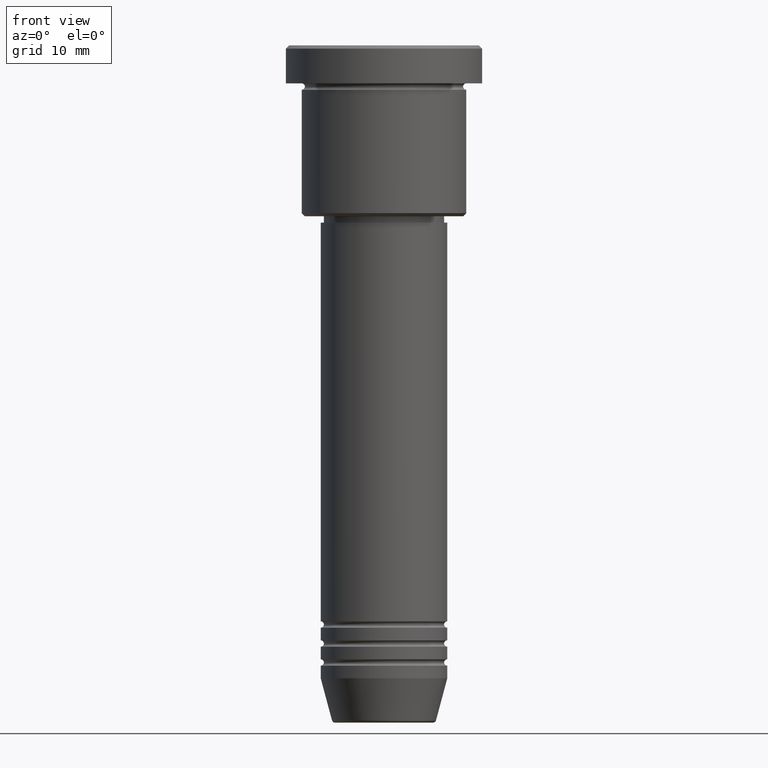
[diagram: clean part render]
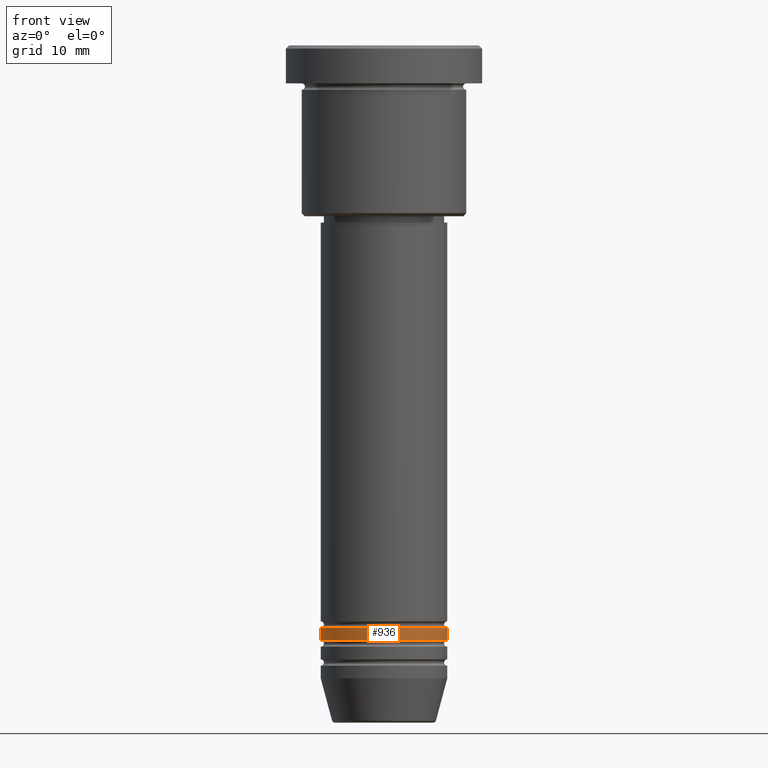
[diagram: same view with one face highlighted and labeled with its STEP entity id]
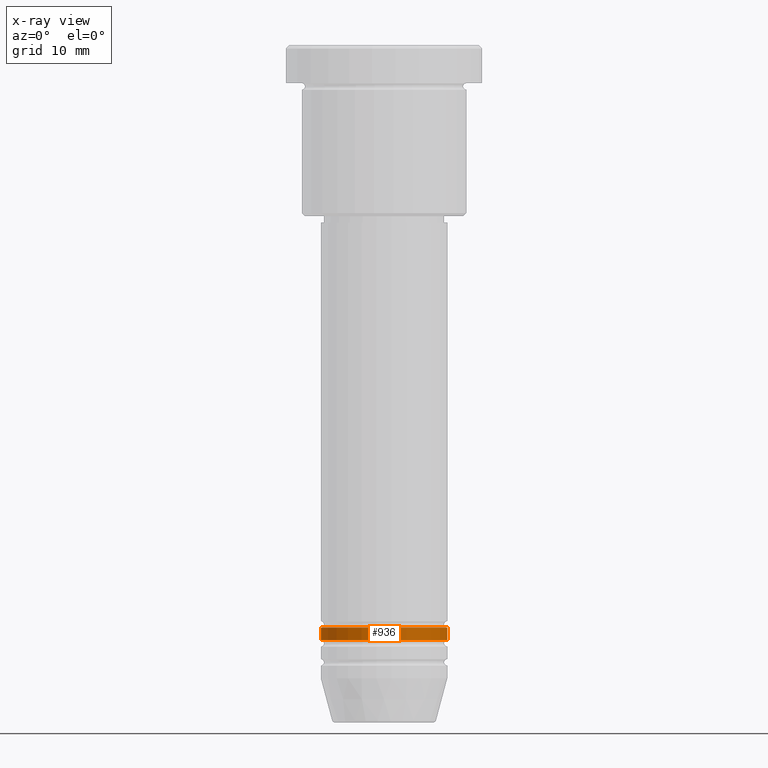
[diagram: x-ray of the same camera — body ghosted, the highlighted face saturated]
A machine part, front view. The second image highlights one B-rep face of the part: STEP entity #936.
The next image is the same camera in x-ray: the body ghosted, the highlighted face saturated — about 0% of this face is hidden behind the body in this view.
In plain terms, the highlighted cylindrical surface (partial cylindrical patch) has radius 10 mm, axis along (-0, -0, 1).
Its self-contained STEP definition (entity closure, byte-faithful):
#6 = CARTESIAN_POINT ( 'NONE',  ( -10.00000000000000000, 1.224646799147353256E-15, -93.99999999999997158 ) ) ;
#133 = DIRECTION ( 'NONE',  ( -0.000000000000000000, -0.000000000000000000, 1.000000000000000000 ) ) ;
#159 = CARTESIAN_POINT ( 'NONE',  ( 10.00000000000000000, 0.000000000000000000, -91.99999999999998579 ) ) ;
#178 = CIRCLE ( 'NONE', #673, 10.00000000000000000 ) ;
#233 = CARTESIAN_POINT ( 'NONE',  ( 0.000000000000000000, 0.000000000000000000, 0.000000000000000000 ) ) ;
#326 = LINE ( 'NONE', #854, #706 ) ;
#361 = CARTESIAN_POINT ( 'NONE',  ( -10.00000000000000000, 1.224646799147353256E-15, 0.000000000000000000 ) ) ;
#367 = ORIENTED_EDGE ( 'NONE', *, *, #651, .F. ) ;
#378 = AXIS2_PLACEMENT_3D ( 'NONE', #233, #948, #972 ) ;
#379 = AXIS2_PLACEMENT_3D ( 'NONE', #1061, #956, #511 ) ;
#431 = EDGE_CURVE ( 'NONE', #469, #726, #539, .T. ) ;
#438 = ORIENTED_EDGE ( 'NONE', *, *, #595, .T. ) ;
#469 = VERTEX_POINT ( 'NONE', #6 ) ;
#506 = CARTESIAN_POINT ( 'NONE',  ( 10.00000000000000000, 0.000000000000000000, -93.99999999999997158 ) ) ;
#511 = DIRECTION ( 'NONE',  ( 1.000000000000000000, 0.000000000000000000, 0.000000000000000000 ) ) ;
#514 = ORIENTED_EDGE ( 'NONE', *, *, #1072, .T. ) ;
#517 = CARTESIAN_POINT ( 'NONE',  ( -10.00000000000000000, 1.224646799147353256E-15, -91.99999999999998579 ) ) ;
#539 = LINE ( 'NONE', #361, #869 ) ;
#591 = DIRECTION ( 'NONE',  ( -0.000000000000000000, -0.000000000000000000, 1.000000000000000000 ) ) ;
#595 = EDGE_CURVE ( 'NONE', #613, #599, #326, .T. ) ;
#599 = VERTEX_POINT ( 'NONE', #159 ) ;
#613 = VERTEX_POINT ( 'NONE', #506 ) ;
#651 = EDGE_CURVE ( 'NONE', #726, #599, #178, .T. ) ;
#673 = AXIS2_PLACEMENT_3D ( 'NONE', #677, #133, #756 ) ;
#677 = CARTESIAN_POINT ( 'NONE',  ( 0.000000000000000000, 0.000000000000000000, -91.99999999999998579 ) ) ;
#706 = VECTOR ( 'NONE', #591, 1000.000000000000000 ) ;
#712 = DIRECTION ( 'NONE',  ( -0.000000000000000000, -0.000000000000000000, 1.000000000000000000 ) ) ;
#726 = VERTEX_POINT ( 'NONE', #517 ) ;
#756 = DIRECTION ( 'NONE',  ( 1.000000000000000000, 0.000000000000000000, 0.000000000000000000 ) ) ;
#848 = EDGE_LOOP ( 'NONE', ( #961, #514, #438, #367 ) ) ;
#854 = CARTESIAN_POINT ( 'NONE',  ( 10.00000000000000000, 0.000000000000000000, 0.000000000000000000 ) ) ;
#869 = VECTOR ( 'NONE', #712, 1000.000000000000000 ) ;
#874 = CYLINDRICAL_SURFACE ( 'NONE', #378, 10.00000000000000000 ) ;
#910 = CIRCLE ( 'NONE', #379, 10.00000000000000000 ) ;
#936 = ADVANCED_FACE ( 'NONE', ( #1047 ), #874, .T. ) ;
#948 = DIRECTION ( 'NONE',  ( -0.000000000000000000, -0.000000000000000000, 1.000000000000000000 ) ) ;
#956 = DIRECTION ( 'NONE',  ( -0.000000000000000000, -0.000000000000000000, 1.000000000000000000 ) ) ;
#961 = ORIENTED_EDGE ( 'NONE', *, *, #431, .F. ) ;
#972 = DIRECTION ( 'NONE',  ( 1.000000000000000000, 0.000000000000000000, 0.000000000000000000 ) ) ;
#1047 = FACE_OUTER_BOUND ( 'NONE', #848, .T. ) ;
#1061 = CARTESIAN_POINT ( 'NONE',  ( 0.000000000000000000, 0.000000000000000000, -93.99999999999997158 ) ) ;
#1072 = EDGE_CURVE ( 'NONE', #469, #613, #910, .T. ) ;